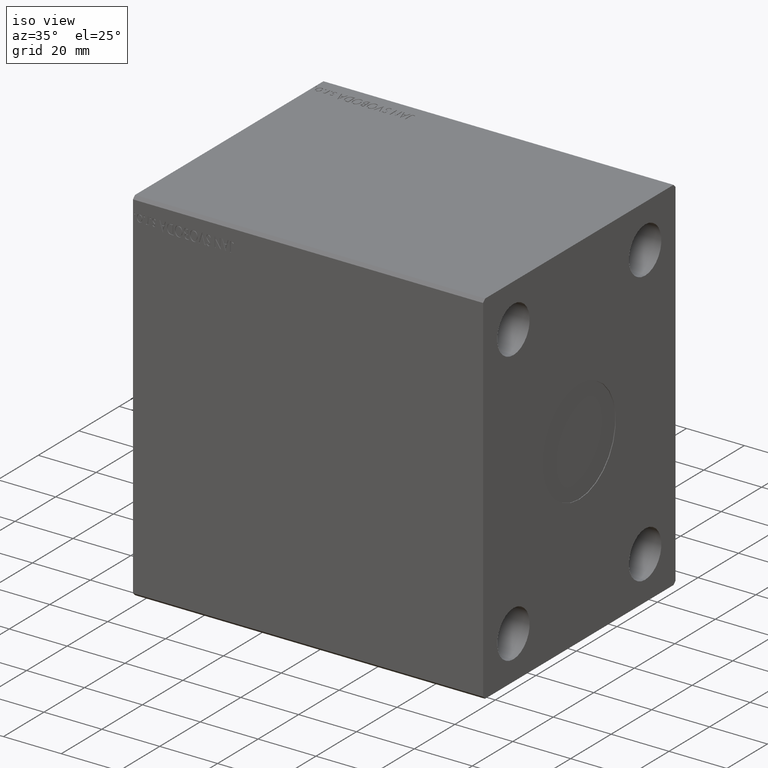
[diagram: clean part render]
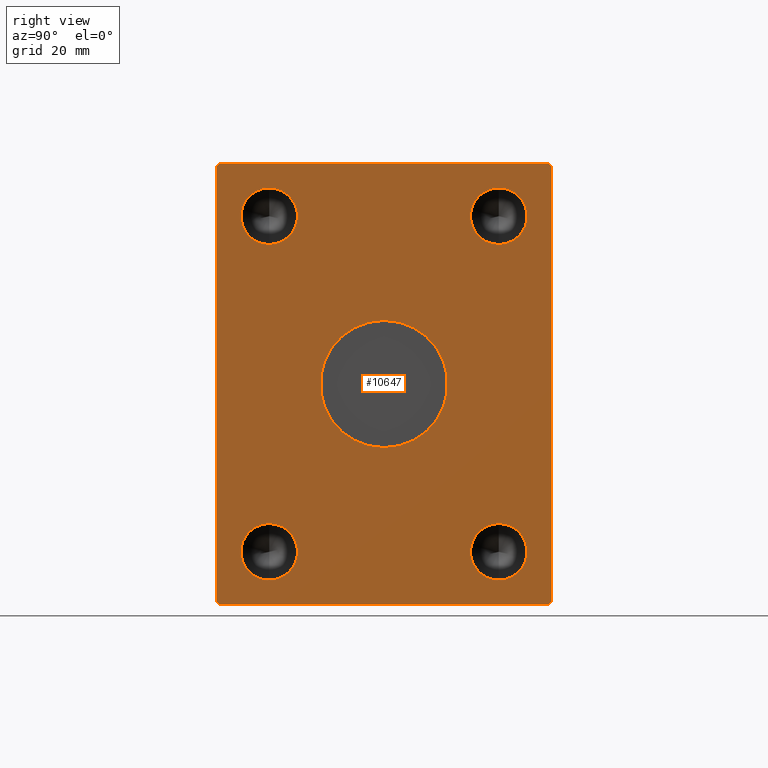
[diagram: tour spotlight — one face highlighted and labeled with its STEP entity id]
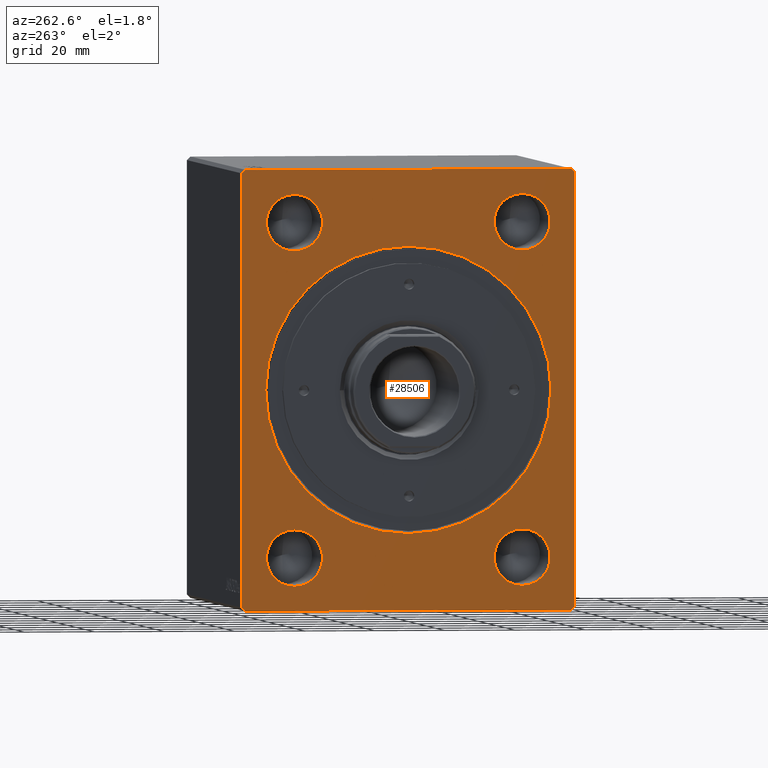
[diagram: tour spotlight — one face highlighted and labeled with its STEP entity id]
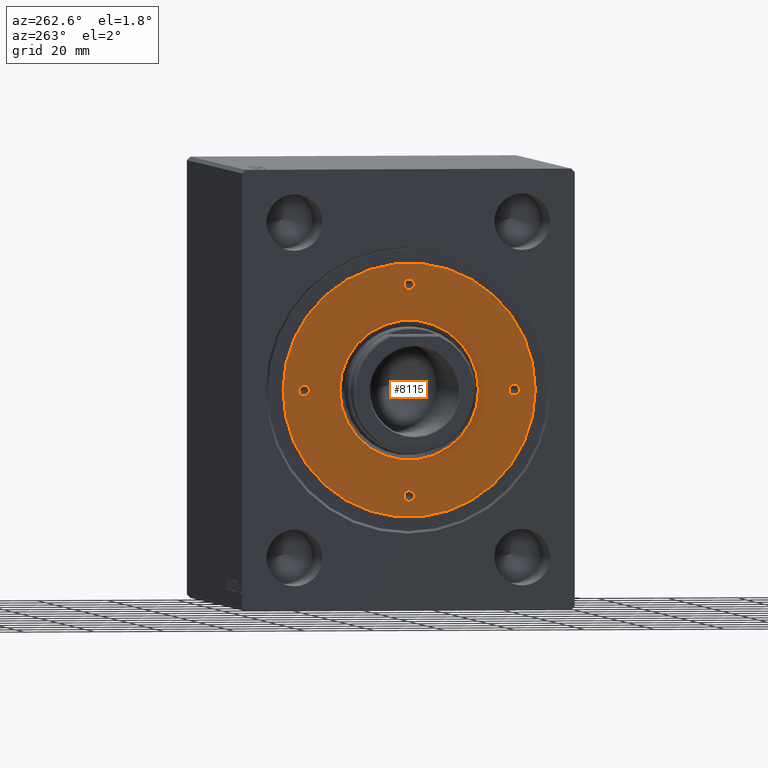
[diagram: tour spotlight — one face highlighted and labeled with its STEP entity id]
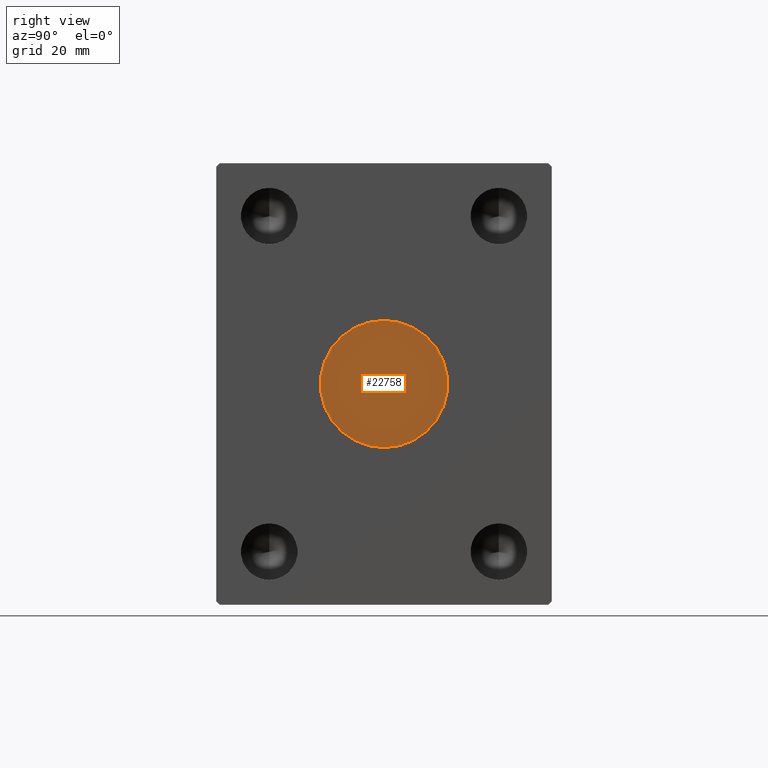
[diagram: tour spotlight — one face highlighted and labeled with its STEP entity id]
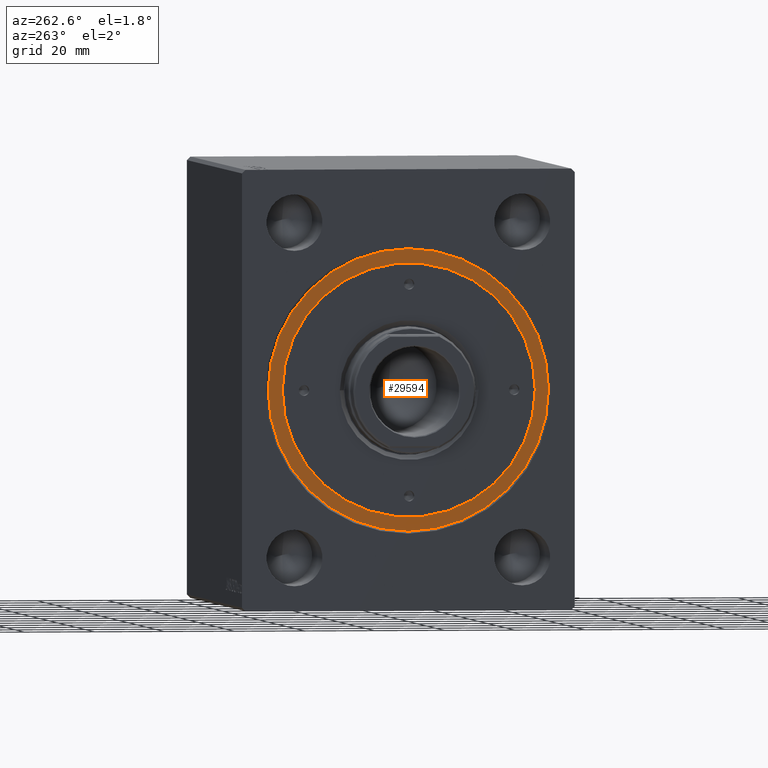
[diagram: tour spotlight — one face highlighted and labeled with its STEP entity id]
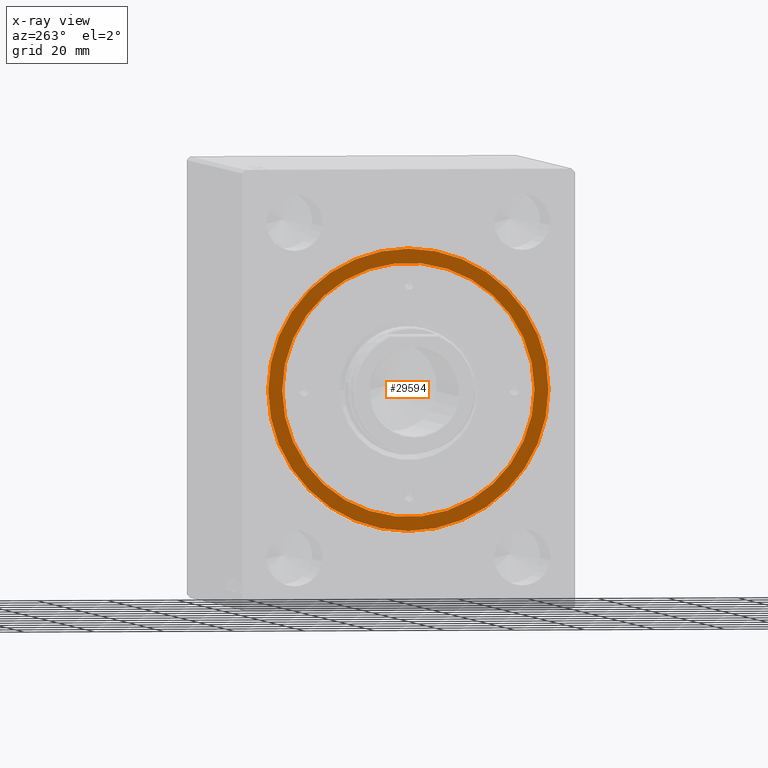
[diagram: x-ray of the same camera — body ghosted, this tour face saturated]
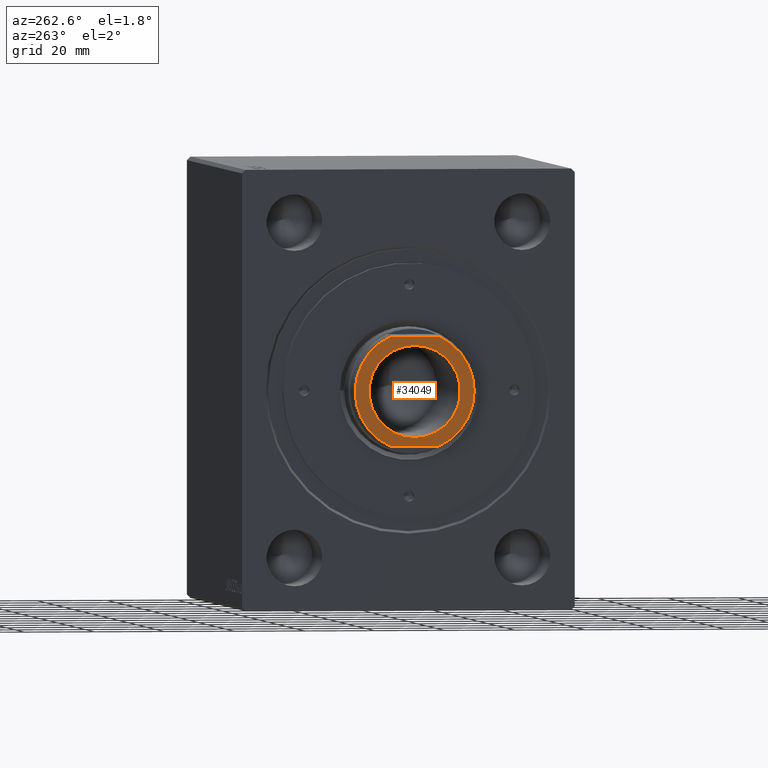
[diagram: tour spotlight — one face highlighted and labeled with its STEP entity id]
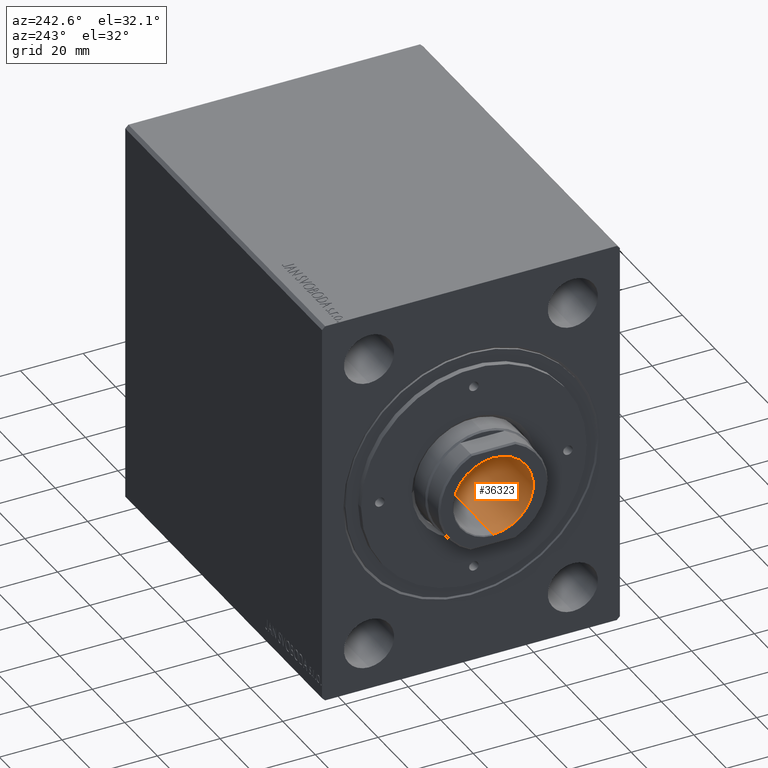
[diagram: tour spotlight — one face highlighted and labeled with its STEP entity id]
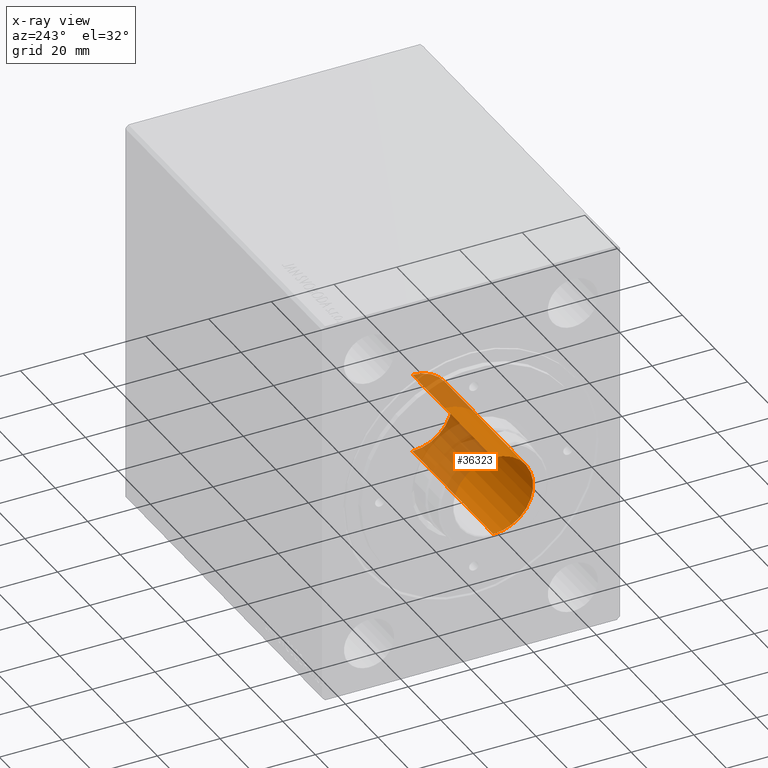
[diagram: x-ray of the same camera — body ghosted, this tour face saturated]
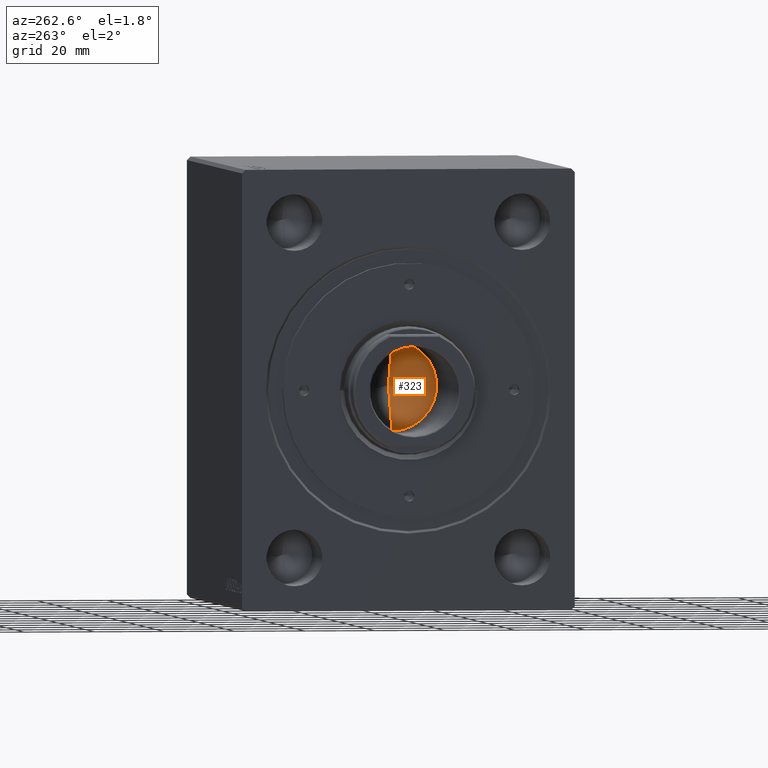
[diagram: tour spotlight — one face highlighted and labeled with its STEP entity id]
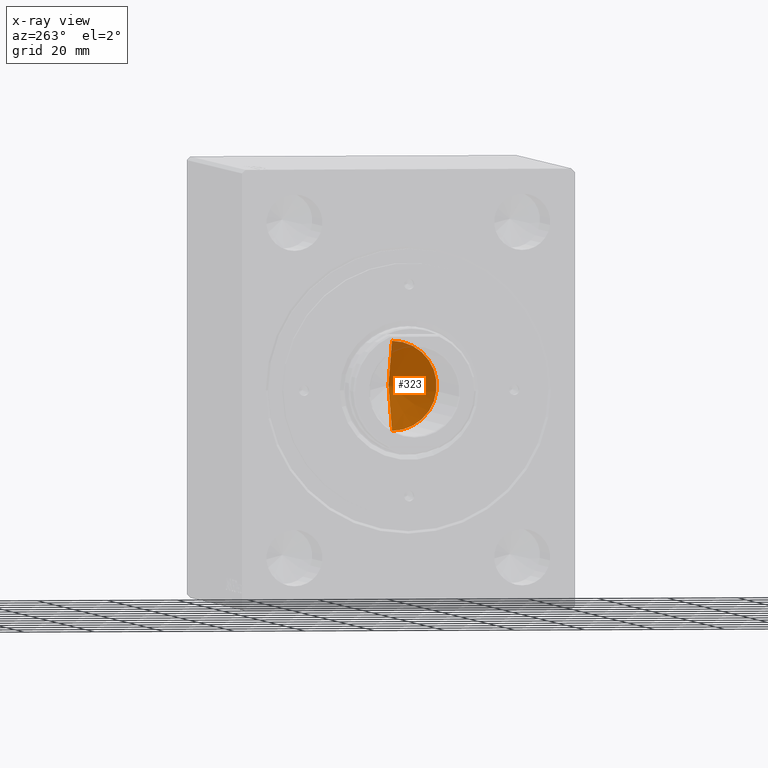
[diagram: x-ray of the same camera — body ghosted, this tour face saturated]
A machine part: a face-by-face anatomy tour. The part has 874 B-rep faces; the first image is the clean iso view, then the 8 largest visible faces are spotlighted one at a time (largest first), each with its STEP entity span.

Face 1 — right view, entity #10647. In plain terms, the highlighted planar face has unit normal (1, 0, 0).
Definition (entity closure, byte-faithful):
#85 = ORIENTED_EDGE ( 'NONE', *, *, #7783, .T. ) ;
#103 = CARTESIAN_POINT ( 'NONE',  ( 121.0000000000000000, 32.50000000000000000, -47.50000000000000000 ) ) ;
#1253 = VECTOR ( 'NONE', #32107, 1000.000000000000114 ) ;
#1358 = AXIS2_PLACEMENT_3D ( 'NONE', #13368, #13148, #30038 ) ;
#1824 = VERTEX_POINT ( 'NONE', #18919 ) ;
#2086 = VERTEX_POINT ( 'NONE', #26448 ) ;
#2590 = ORIENTED_EDGE ( 'NONE', *, *, #6303, .F. ) ;
#2898 = FACE_BOUND ( 'NONE', #4334, .T. ) ;
#2994 = CIRCLE ( 'NONE', #24351, 7.999999999999992895 ) ;
#3080 = EDGE_CURVE ( 'NONE', #11642, #22150, #10416, .T. ) ;
#3993 = AXIS2_PLACEMENT_3D ( 'NONE', #4452, #8668, #28911 ) ;
#4031 = CARTESIAN_POINT ( 'NONE',  ( 121.0000000000000000, -32.50000000000000000, -39.50000000000000711 ) ) ;
#4119 = CIRCLE ( 'NONE', #14786, 7.999999999999992895 ) ;
#4334 = EDGE_LOOP ( 'NONE', ( #2590, #35623 ) ) ;
#4452 = CARTESIAN_POINT ( 'NONE',  ( 121.0000000000000000, 32.50000000000000000, 47.50000000000000000 ) ) ;
#4607 = CARTESIAN_POINT ( 'NONE',  ( 121.0000000000000000, -32.50000000000000000, -47.50000000000000711 ) ) ;
#6303 = EDGE_CURVE ( 'NONE', #1824, #39305, #4119, .T. ) ;
#6553 = EDGE_CURVE ( 'NONE', #28786, #40620, #35445, .T. ) ;
#6595 = DIRECTION ( 'NONE',  ( 0.000000000000000000, 0.000000000000000000, -1.000000000000000000 ) ) ;
#7575 = ORIENTED_EDGE ( 'NONE', *, *, #33011, .T. ) ;
#7783 = EDGE_CURVE ( 'NONE', #32522, #35300, #23610, .T. ) ;
#7921 = CARTESIAN_POINT ( 'NONE',  ( 121.0000000000000000, -32.50000000000000000, 47.50000000000000000 ) ) ;
#8409 = VECTOR ( 'NONE', #37831, 1000.000000000000000 ) ;
#8617 = CARTESIAN_POINT ( 'NONE',  ( 121.0000000000000000, -46.50000000000000000, -62.50000000000001421 ) ) ;
#8668 = DIRECTION ( 'NONE',  ( 1.000000000000000000, -0.000000000000000000, -0.000000000000000000 ) ) ;
#9310 = ORIENTED_EDGE ( 'NONE', *, *, #3080, .F. ) ;
#10035 = ORIENTED_EDGE ( 'NONE', *, *, #15777, .T. ) ;
#10166 = AXIS2_PLACEMENT_3D ( 'NONE', #7921, #32361, #35920 ) ;
#10416 = CIRCLE ( 'NONE', #3993, 7.999999999999992895 ) ;
#10647 = ADVANCED_FACE ( 'NONE', ( #13818, #37376, #30482, #2898, #16502, #20492 ), #43840, .T. ) ;
#11604 = CIRCLE ( 'NONE', #37897, 18.00000000000000000 ) ;
#11642 = VERTEX_POINT ( 'NONE', #34500 ) ;
#11790 = EDGE_LOOP ( 'NONE', ( #20399, #25860 ) ) ;
#11826 = ORIENTED_EDGE ( 'NONE', *, *, #13235, .T. ) ;
#11907 = CARTESIAN_POINT ( 'NONE',  ( 121.0000000000000000, 32.50000000000000000, 47.50000000000000000 ) ) ;
#12215 = VECTOR ( 'NONE', #40042, 1000.000000000000000 ) ;
#12217 = EDGE_CURVE ( 'NONE', #39339, #37107, #34349, .T. ) ;
#12278 = CARTESIAN_POINT ( 'NONE',  ( 121.0000000000000000, 47.50000000000001421, -61.50000000000001421 ) ) ;
#12280 = EDGE_CURVE ( 'NONE', #35861, #24974, #11604, .T. ) ;
#13148 = DIRECTION ( 'NONE',  ( 1.000000000000000000, 0.000000000000000000, 0.000000000000000000 ) ) ;
#13235 = EDGE_CURVE ( 'NONE', #29776, #28786, #18640, .T. ) ;
#13368 = CARTESIAN_POINT ( 'NONE',  ( 121.0000000000000000, 0.000000000000000000, 0.000000000000000000 ) ) ;
#13718 = CARTESIAN_POINT ( 'NONE',  ( 121.0000000000000000, 0.000000000000000000, 0.000000000000000000 ) ) ;
#13818 = FACE_BOUND ( 'NONE', #27114, .T. ) ;
#13941 = DIRECTION ( 'NONE',  ( 1.000000000000000000, 0.000000000000000000, 0.000000000000000000 ) ) ;
#14022 = CARTESIAN_POINT ( 'NONE',  ( 121.0000000000000000, 47.50000000000000000, 61.49999999999998579 ) ) ;
#14041 = ORIENTED_EDGE ( 'NONE', *, *, #32559, .T. ) ;
#14786 = AXIS2_PLACEMENT_3D ( 'NONE', #103, #30349, #37029 ) ;
#15481 = ORIENTED_EDGE ( 'NONE', *, *, #12280, .F. ) ;
#15777 = EDGE_CURVE ( 'NONE', #33238, #29776, #20257, .T. ) ;
#16301 = DIRECTION ( 'NONE',  ( 0.000000000000000000, 0.000000000000000000, -1.000000000000000000 ) ) ;
#16483 = CARTESIAN_POINT ( 'NONE',  ( 121.0000000000000000, 46.50000000000000000, -62.50000000000000000 ) ) ;
#16502 = FACE_BOUND ( 'NONE', #11790, .T. ) ;
#18563 = CARTESIAN_POINT ( 'NONE',  ( 121.0000000000000000, -46.50000000000001421, 62.49999999999997868 ) ) ;
#18640 = LINE ( 'NONE', #25957, #33036 ) ;
#18919 = CARTESIAN_POINT ( 'NONE',  ( 121.0000000000000000, 32.50000000000000000, -55.49999999999999289 ) ) ;
#18975 = CARTESIAN_POINT ( 'NONE',  ( 121.0000000000000000, 32.50000000000000000, -47.50000000000000000 ) ) ;
#19087 = EDGE_CURVE ( 'NONE', #24974, #35861, #43990, .T. ) ;
#19429 = EDGE_CURVE ( 'NONE', #37107, #39339, #34752, .T. ) ;
#20257 = LINE ( 'NONE', #14022, #25677 ) ;
#20399 = ORIENTED_EDGE ( 'NONE', *, *, #34582, .F. ) ;
#20492 = FACE_OUTER_BOUND ( 'NONE', #29551, .T. ) ;
#21127 = CARTESIAN_POINT ( 'NONE',  ( 121.0000000000000000, -47.50000000000001421, 61.49999999999997868 ) ) ;
#21493 = CARTESIAN_POINT ( 'NONE',  ( 121.0000000000000000, -47.49999999999999289, -61.50000000000001421 ) ) ;
#21538 = DIRECTION ( 'NONE',  ( 1.000000000000000000, -0.000000000000000000, -0.000000000000000000 ) ) ;
#22150 = VERTEX_POINT ( 'NONE', #44034 ) ;
#22584 = AXIS2_PLACEMENT_3D ( 'NONE', #43377, #43599, #43819 ) ;
#22861 = CARTESIAN_POINT ( 'NONE',  ( 121.0000000000000000, 46.50000000000000000, -62.50000000000000000 ) ) ;
#23610 = LINE ( 'NONE', #37162, #8409 ) ;
#23636 = CIRCLE ( 'NONE', #35708, 7.999999999999992895 ) ;
#23816 = DIRECTION ( 'NONE',  ( 0.000000000000000000, -0.7071067811865474617, 0.7071067811865474617 ) ) ;
#24221 = DIRECTION ( 'NONE',  ( 0.000000000000000000, 0.000000000000000000, -1.000000000000000000 ) ) ;
#24351 = AXIS2_PLACEMENT_3D ( 'NONE', #18975, #39847, #16301 ) ;
#24407 = CIRCLE ( 'NONE', #10166, 7.999999999999992895 ) ;
#24974 = VERTEX_POINT ( 'NONE', #42087 ) ;
#25478 = DIRECTION ( 'NONE',  ( 0.000000000000000000, 0.000000000000000000, -1.000000000000000000 ) ) ;
#25677 = VECTOR ( 'NONE', #23816, 1000.000000000000114 ) ;
#25741 = EDGE_CURVE ( 'NONE', #31360, #33238, #35627, .T. ) ;
#25860 = ORIENTED_EDGE ( 'NONE', *, *, #41908, .F. ) ;
#25957 = CARTESIAN_POINT ( 'NONE',  ( 121.0000000000000000, 46.50000000000000000, 62.49999999999998579 ) ) ;
#26026 = CARTESIAN_POINT ( 'NONE',  ( 121.0000000000000000, 47.50000000000000000, 61.49999999999998579 ) ) ;
#26448 = CARTESIAN_POINT ( 'NONE',  ( 121.0000000000000000, -32.50000000000000000, 55.49999999999999289 ) ) ;
#27114 = EDGE_LOOP ( 'NONE', ( #15481, #38523 ) ) ;
#28058 = CARTESIAN_POINT ( 'NONE',  ( 121.0000000000000000, 32.50000000000000000, -39.50000000000000711 ) ) ;
#28665 = CARTESIAN_POINT ( 'NONE',  ( 121.0000000000000000, 46.50000000000000000, 62.49999999999998579 ) ) ;
#28786 = VERTEX_POINT ( 'NONE', #28818 ) ;
#28818 = CARTESIAN_POINT ( 'NONE',  ( 121.0000000000000000, -46.50000000000001421, 62.49999999999997868 ) ) ;
#28911 = DIRECTION ( 'NONE',  ( 0.000000000000000000, 0.000000000000000000, -1.000000000000000000 ) ) ;
#28964 = ORIENTED_EDGE ( 'NONE', *, *, #36183, .T. ) ;
#29025 = ORIENTED_EDGE ( 'NONE', *, *, #32664, .F. ) ;
#29551 = EDGE_LOOP ( 'NONE', ( #10035, #11826, #33160, #28964, #7575, #85, #14041, #38971 ) ) ;
#29710 = EDGE_LOOP ( 'NONE', ( #43408, #41239 ) ) ;
#29713 = CARTESIAN_POINT ( 'NONE',  ( 121.0000000000000000, -32.50000000000000000, 39.50000000000000711 ) ) ;
#29776 = VERTEX_POINT ( 'NONE', #28665 ) ;
#30038 = DIRECTION ( 'NONE',  ( 0.000000000000000000, 0.000000000000000000, -1.000000000000000000 ) ) ;
#30349 = DIRECTION ( 'NONE',  ( 1.000000000000000000, -0.000000000000000000, -0.000000000000000000 ) ) ;
#30482 = FACE_BOUND ( 'NONE', #29710, .T. ) ;
#30733 = VECTOR ( 'NONE', #33070, 999.9999999999998863 ) ;
#31360 = VERTEX_POINT ( 'NONE', #36100 ) ;
#31483 = DIRECTION ( 'NONE',  ( 1.000000000000000000, -0.000000000000000000, -0.000000000000000000 ) ) ;
#32107 = DIRECTION ( 'NONE',  ( 0.000000000000000000, -0.7071067811865474617, -0.7071067811865474617 ) ) ;
#32258 = EDGE_CURVE ( 'NONE', #39305, #1824, #2994, .T. ) ;
#32361 = DIRECTION ( 'NONE',  ( 1.000000000000000000, -0.000000000000000000, -0.000000000000000000 ) ) ;
#32522 = VERTEX_POINT ( 'NONE', #8617 ) ;
#32559 = EDGE_CURVE ( 'NONE', #35300, #31360, #43531, .T. ) ;
#32664 = EDGE_CURVE ( 'NONE', #22150, #11642, #23636, .T. ) ;
#32725 = VERTEX_POINT ( 'NONE', #21493 ) ;
#33011 = EDGE_CURVE ( 'NONE', #32725, #32522, #36524, .T. ) ;
#33036 = VECTOR ( 'NONE', #42425, 1000.000000000000000 ) ;
#33070 = DIRECTION ( 'NONE',  ( 0.000000000000000000, 0.7071067811865574537, 0.7071067811865376918 ) ) ;
#33160 = ORIENTED_EDGE ( 'NONE', *, *, #6553, .T. ) ;
#33238 = VERTEX_POINT ( 'NONE', #26026 ) ;
#33308 = CARTESIAN_POINT ( 'NONE',  ( 121.0000000000000000, -32.50000000000000000, -47.50000000000000711 ) ) ;
#33532 = DIRECTION ( 'NONE',  ( 1.000000000000000000, -0.000000000000000000, -0.000000000000000000 ) ) ;
#34349 = CIRCLE ( 'NONE', #43578, 8.000000000000000000 ) ;
#34500 = CARTESIAN_POINT ( 'NONE',  ( 121.0000000000000000, 32.50000000000000000, 39.50000000000000711 ) ) ;
#34582 = EDGE_CURVE ( 'NONE', #43520, #2086, #24407, .T. ) ;
#34643 = CARTESIAN_POINT ( 'NONE',  ( 121.0000000000000000, -32.50000000000000000, 47.50000000000000000 ) ) ;
#34752 = CIRCLE ( 'NONE', #41862, 8.000000000000000000 ) ;
#34806 = VECTOR ( 'NONE', #42534, 1000.000000000000000 ) ;
#34859 = DIRECTION ( 'NONE',  ( 1.000000000000000000, -0.000000000000000000, -0.000000000000000000 ) ) ;
#35091 = DIRECTION ( 'NONE',  ( 0.000000000000000000, 0.000000000000000000, -1.000000000000000000 ) ) ;
#35300 = VERTEX_POINT ( 'NONE', #16483 ) ;
#35445 = LINE ( 'NONE', #18563, #1253 ) ;
#35623 = ORIENTED_EDGE ( 'NONE', *, *, #32258, .F. ) ;
#35627 = LINE ( 'NONE', #12278, #34806 ) ;
#35708 = AXIS2_PLACEMENT_3D ( 'NONE', #11907, #31483, #25478 ) ;
#35861 = VERTEX_POINT ( 'NONE', #43213 ) ;
#35920 = DIRECTION ( 'NONE',  ( 0.000000000000000000, 0.000000000000000000, -1.000000000000000000 ) ) ;
#36075 = CARTESIAN_POINT ( 'NONE',  ( 121.0000000000000000, -47.49999999999999289, -61.50000000000001421 ) ) ;
#36100 = CARTESIAN_POINT ( 'NONE',  ( 121.0000000000000000, 47.50000000000001421, -61.50000000000001421 ) ) ;
#36183 = EDGE_CURVE ( 'NONE', #40620, #32725, #43384, .T. ) ;
#36524 = LINE ( 'NONE', #36075, #41412 ) ;
#37029 = DIRECTION ( 'NONE',  ( 0.000000000000000000, 0.000000000000000000, -1.000000000000000000 ) ) ;
#37107 = VERTEX_POINT ( 'NONE', #42597 ) ;
#37162 = CARTESIAN_POINT ( 'NONE',  ( 121.0000000000000000, -46.50000000000000000, -62.50000000000001421 ) ) ;
#37376 = FACE_BOUND ( 'NONE', #38574, .T. ) ;
#37831 = DIRECTION ( 'NONE',  ( 0.000000000000000000, 1.000000000000000000, 1.492235248152092278E-16 ) ) ;
#37897 = AXIS2_PLACEMENT_3D ( 'NONE', #13718, #13941, #6595 ) ;
#38523 = ORIENTED_EDGE ( 'NONE', *, *, #19087, .F. ) ;
#38574 = EDGE_LOOP ( 'NONE', ( #9310, #29025 ) ) ;
#38971 = ORIENTED_EDGE ( 'NONE', *, *, #25741, .T. ) ;
#39305 = VERTEX_POINT ( 'NONE', #28058 ) ;
#39339 = VERTEX_POINT ( 'NONE', #4031 ) ;
#39817 = CARTESIAN_POINT ( 'NONE',  ( 121.0000000000000000, -47.50000000000001421, 61.49999999999997868 ) ) ;
#39847 = DIRECTION ( 'NONE',  ( 1.000000000000000000, -0.000000000000000000, -0.000000000000000000 ) ) ;
#40042 = DIRECTION ( 'NONE',  ( 0.000000000000000000, 1.692413147294445970E-16, -1.000000000000000000 ) ) ;
#40077 = DIRECTION ( 'NONE',  ( 0.000000000000000000, 0.7071067811865451302, -0.7071067811865500152 ) ) ;
#40421 = DIRECTION ( 'NONE',  ( 0.000000000000000000, 0.000000000000000000, -1.000000000000000000 ) ) ;
#40620 = VERTEX_POINT ( 'NONE', #21127 ) ;
#41239 = ORIENTED_EDGE ( 'NONE', *, *, #12217, .F. ) ;
#41412 = VECTOR ( 'NONE', #40077, 1000.000000000000114 ) ;
#41494 = CIRCLE ( 'NONE', #43655, 7.999999999999992895 ) ;
#41862 = AXIS2_PLACEMENT_3D ( 'NONE', #33308, #33532, #40421 ) ;
#41908 = EDGE_CURVE ( 'NONE', #2086, #43520, #41494, .T. ) ;
#42087 = CARTESIAN_POINT ( 'NONE',  ( 121.0000000000000000, 2.204364238465235428E-15, 18.00000000000000000 ) ) ;
#42425 = DIRECTION ( 'NONE',  ( 0.000000000000000000, -1.000000000000000000, -7.461176240760460157E-17 ) ) ;
#42534 = DIRECTION ( 'NONE',  ( 0.000000000000000000, -1.128275431529630729E-16, 1.000000000000000000 ) ) ;
#42597 = CARTESIAN_POINT ( 'NONE',  ( 121.0000000000000000, -32.50000000000000000, -55.50000000000000711 ) ) ;
#43213 = CARTESIAN_POINT ( 'NONE',  ( 121.0000000000000000, 0.000000000000000000, -18.00000000000000000 ) ) ;
#43377 = CARTESIAN_POINT ( 'NONE',  ( 121.0000000000000000, 0.000000000000000000, 0.000000000000000000 ) ) ;
#43384 = LINE ( 'NONE', #39817, #12215 ) ;
#43408 = ORIENTED_EDGE ( 'NONE', *, *, #19429, .F. ) ;
#43520 = VERTEX_POINT ( 'NONE', #29713 ) ;
#43531 = LINE ( 'NONE', #22861, #30733 ) ;
#43578 = AXIS2_PLACEMENT_3D ( 'NONE', #4607, #21538, #35091 ) ;
#43599 = DIRECTION ( 'NONE',  ( 1.000000000000000000, 0.000000000000000000, 0.000000000000000000 ) ) ;
#43655 = AXIS2_PLACEMENT_3D ( 'NONE', #34643, #34859, #24221 ) ;
#43819 = DIRECTION ( 'NONE',  ( 0.000000000000000000, 0.000000000000000000, -1.000000000000000000 ) ) ;
#43840 = PLANE ( 'NONE',  #1358 ) ;
#43990 = CIRCLE ( 'NONE', #22584, 18.00000000000000000 ) ;
#44034 = CARTESIAN_POINT ( 'NONE',  ( 121.0000000000000000, 32.50000000000000000, 55.49999999999999289 ) ) ;

Face 2 — auxiliary view, entity #28506. In plain terms, the highlighted planar face has unit normal (1, 0, 0).
Definition (entity closure, byte-faithful):
#219 = CARTESIAN_POINT ( 'NONE',  ( 4.898587196589409870E-16, -32.50000000000000000, -39.50000000000000711 ) ) ;
#305 = EDGE_CURVE ( 'NONE', #30146, #35410, #2805, .T. ) ;
#339 = CARTESIAN_POINT ( 'NONE',  ( 4.898587196589409870E-16, 32.50000000000000000, -47.50000000000000000 ) ) ;
#805 = CARTESIAN_POINT ( 'NONE',  ( 4.898587196589409870E-16, 32.50000000000000000, 55.49999999999999289 ) ) ;
#1261 = ORIENTED_EDGE ( 'NONE', *, *, #36348, .T. ) ;
#1826 = CARTESIAN_POINT ( 'NONE',  ( 0.000000000000000000, 46.50000000000000000, -62.50000000000000000 ) ) ;
#1866 = VERTEX_POINT ( 'NONE', #29781 ) ;
#2303 = CIRCLE ( 'NONE', #42105, 7.999999999999992895 ) ;
#2805 = CIRCLE ( 'NONE', #43305, 7.999999999999992895 ) ;
#3388 = AXIS2_PLACEMENT_3D ( 'NONE', #9520, #6183, #13088 ) ;
#3760 = VERTEX_POINT ( 'NONE', #1826 ) ;
#3957 = EDGE_LOOP ( 'NONE', ( #36509, #25584 ) ) ;
#4289 = ORIENTED_EDGE ( 'NONE', *, *, #9726, .F. ) ;
#4338 = VERTEX_POINT ( 'NONE', #18441 ) ;
#4495 = CIRCLE ( 'NONE', #29256, 40.70000000000003837 ) ;
#4690 = CARTESIAN_POINT ( 'NONE',  ( 0.000000000000000000, -47.49999999999999289, -61.50000000000001421 ) ) ;
#5609 = ORIENTED_EDGE ( 'NONE', *, *, #32809, .F. ) ;
#5639 = LINE ( 'NONE', #42572, #36991 ) ;
#6135 = CARTESIAN_POINT ( 'NONE',  ( 4.898587196589409870E-16, -32.50000000000000000, 55.49999999999999289 ) ) ;
#6183 = DIRECTION ( 'NONE',  ( -1.000000000000000000, -0.000000000000000000, -0.000000000000000000 ) ) ;
#6868 = VERTEX_POINT ( 'NONE', #219 ) ;
#7132 = EDGE_CURVE ( 'NONE', #6868, #9967, #31108, .T. ) ;
#7346 = EDGE_CURVE ( 'NONE', #15637, #17865, #16918, .T. ) ;
#7898 = CARTESIAN_POINT ( 'NONE',  ( 0.000000000000000000, 47.50000000000001421, -61.50000000000001421 ) ) ;
#8537 = FACE_BOUND ( 'NONE', #3957, .T. ) ;
#8966 = DIRECTION ( 'NONE',  ( 0.000000000000000000, 0.000000000000000000, -1.000000000000000000 ) ) ;
#9520 = CARTESIAN_POINT ( 'NONE',  ( 4.898587196589409870E-16, -32.50000000000000000, -47.50000000000000711 ) ) ;
#9577 = CARTESIAN_POINT ( 'NONE',  ( 4.898587196589409870E-16, -32.50000000000000000, -47.50000000000000711 ) ) ;
#9726 = EDGE_CURVE ( 'NONE', #18960, #38416, #30506, .T. ) ;
#9743 = EDGE_CURVE ( 'NONE', #17865, #15637, #13406, .T. ) ;
#9815 = ORIENTED_EDGE ( 'NONE', *, *, #7346, .F. ) ;
#9967 = VERTEX_POINT ( 'NONE', #17082 ) ;
#10418 = ORIENTED_EDGE ( 'NONE', *, *, #7132, .F. ) ;
#10595 = ORIENTED_EDGE ( 'NONE', *, *, #305, .F. ) ;
#10994 = DIRECTION ( 'NONE',  ( 0.000000000000000000, 1.692413147294445970E-16, -1.000000000000000000 ) ) ;
#11259 = LINE ( 'NONE', #27946, #40422 ) ;
#11266 = AXIS2_PLACEMENT_3D ( 'NONE', #24516, #17409, #24940 ) ;
#11663 = FACE_OUTER_BOUND ( 'NONE', #17601, .T. ) ;
#12098 = DIRECTION ( 'NONE',  ( 0.000000000000000000, -1.128275431529630729E-16, 1.000000000000000000 ) ) ;
#12233 = EDGE_LOOP ( 'NONE', ( #16905, #1261 ) ) ;
#12252 = CIRCLE ( 'NONE', #40669, 40.70000000000003837 ) ;
#12567 = DIRECTION ( 'NONE',  ( 0.000000000000000000, 0.7071067811865451302, -0.7071067811865500152 ) ) ;
#13088 = DIRECTION ( 'NONE',  ( 0.000000000000000000, 0.000000000000000000, 1.000000000000000000 ) ) ;
#13200 = ORIENTED_EDGE ( 'NONE', *, *, #18732, .F. ) ;
#13406 = CIRCLE ( 'NONE', #11266, 7.999999999999992895 ) ;
#13872 = LINE ( 'NONE', #30092, #36189 ) ;
#13926 = DIRECTION ( 'NONE',  ( -1.000000000000000000, -0.000000000000000000, -0.000000000000000000 ) ) ;
#14083 = CARTESIAN_POINT ( 'NONE',  ( 4.898587196589409870E-16, 32.50000000000000000, -39.50000000000000711 ) ) ;
#14285 = DIRECTION ( 'NONE',  ( 0.000000000000000000, 0.000000000000000000, 1.000000000000000000 ) ) ;
#14898 = CARTESIAN_POINT ( 'NONE',  ( 4.898587196589409870E-16, 32.50000000000000000, -55.49999999999999289 ) ) ;
#14928 = VERTEX_POINT ( 'NONE', #805 ) ;
#15020 = FACE_BOUND ( 'NONE', #41615, .T. ) ;
#15163 = DIRECTION ( 'NONE',  ( -1.000000000000000000, -0.000000000000000000, -0.000000000000000000 ) ) ;
#15225 = EDGE_CURVE ( 'NONE', #38416, #35238, #34575, .T. ) ;
#15497 = DIRECTION ( 'NONE',  ( -1.000000000000000000, -0.000000000000000000, -0.000000000000000000 ) ) ;
#15637 = VERTEX_POINT ( 'NONE', #18508 ) ;
#16209 = AXIS2_PLACEMENT_3D ( 'NONE', #35283, #28397, #42402 ) ;
#16278 = VECTOR ( 'NONE', #43769, 1000.000000000000114 ) ;
#16593 = EDGE_CURVE ( 'NONE', #9967, #6868, #24751, .T. ) ;
#16845 = CARTESIAN_POINT ( 'NONE',  ( 0.000000000000000000, 0.000000000000000000, 0.000000000000000000 ) ) ;
#16875 = LINE ( 'NONE', #26866, #16278 ) ;
#16905 = ORIENTED_EDGE ( 'NONE', *, *, #36978, .T. ) ;
#16918 = CIRCLE ( 'NONE', #16209, 7.999999999999992895 ) ;
#17082 = CARTESIAN_POINT ( 'NONE',  ( 4.898587196589409870E-16, -32.50000000000000000, -55.50000000000000711 ) ) ;
#17409 = DIRECTION ( 'NONE',  ( -1.000000000000000000, -0.000000000000000000, -0.000000000000000000 ) ) ;
#17601 = EDGE_LOOP ( 'NONE', ( #21051, #35851, #37488, #29874, #5609, #37567, #4289, #13200 ) ) ;
#17865 = VERTEX_POINT ( 'NONE', #6135 ) ;
#17988 = EDGE_LOOP ( 'NONE', ( #10418, #28261 ) ) ;
#18053 = VERTEX_POINT ( 'NONE', #7898 ) ;
#18343 = AXIS2_PLACEMENT_3D ( 'NONE', #32374, #15497, #35063 ) ;
#18441 = CARTESIAN_POINT ( 'NONE',  ( 0.000000000000000000, 0.000000000000000000, 40.70000000000003837 ) ) ;
#18508 = CARTESIAN_POINT ( 'NONE',  ( 4.898587196589409870E-16, -32.50000000000000000, 39.50000000000000711 ) ) ;
#18732 = EDGE_CURVE ( 'NONE', #32032, #18960, #11259, .T. ) ;
#18960 = VERTEX_POINT ( 'NONE', #34309 ) ;
#20586 = EDGE_CURVE ( 'NONE', #35410, #30146, #31113, .T. ) ;
#20601 = EDGE_CURVE ( 'NONE', #41922, #14928, #37500, .T. ) ;
#20871 = DIRECTION ( 'NONE',  ( -1.000000000000000000, -0.000000000000000000, -0.000000000000000000 ) ) ;
#21051 = ORIENTED_EDGE ( 'NONE', *, *, #23601, .F. ) ;
#21606 = DIRECTION ( 'NONE',  ( 0.000000000000000000, -0.7071067811865474617, -0.7071067811865474617 ) ) ;
#21687 = EDGE_CURVE ( 'NONE', #3760, #18053, #39742, .T. ) ;
#22122 = FACE_BOUND ( 'NONE', #12233, .T. ) ;
#22159 = DIRECTION ( 'NONE',  ( 0.000000000000000000, -1.000000000000000000, -7.461176240760460157E-17 ) ) ;
#23024 = CARTESIAN_POINT ( 'NONE',  ( 0.000000000000000000, -47.49999999999999289, -61.50000000000001421 ) ) ;
#23459 = CARTESIAN_POINT ( 'NONE',  ( 0.000000000000000000, 46.50000000000000000, 62.49999999999998579 ) ) ;
#23601 = EDGE_CURVE ( 'NONE', #35588, #32032, #16875, .T. ) ;
#23962 = DIRECTION ( 'NONE',  ( 1.000000000000000000, 0.000000000000000000, 0.000000000000000000 ) ) ;
#24516 = CARTESIAN_POINT ( 'NONE',  ( 4.898587196589409870E-16, -32.50000000000000000, 47.50000000000000000 ) ) ;
#24751 = CIRCLE ( 'NONE', #38228, 8.000000000000000000 ) ;
#24895 = EDGE_CURVE ( 'NONE', #1866, #3760, #13872, .T. ) ;
#24940 = DIRECTION ( 'NONE',  ( 0.000000000000000000, 0.000000000000000000, 1.000000000000000000 ) ) ;
#25124 = DIRECTION ( 'NONE',  ( 1.000000000000000000, 0.000000000000000000, 0.000000000000000000 ) ) ;
#25158 = CARTESIAN_POINT ( 'NONE',  ( 0.000000000000000000, -46.50000000000001421, 62.49999999999997868 ) ) ;
#25584 = ORIENTED_EDGE ( 'NONE', *, *, #20601, .F. ) ;
#25669 = PLANE ( 'NONE',  #27760 ) ;
#26837 = DIRECTION ( 'NONE',  ( 0.000000000000000000, 0.7071067811865574537, 0.7071067811865376918 ) ) ;
#26866 = CARTESIAN_POINT ( 'NONE',  ( 0.000000000000000000, 47.50000000000000000, 61.49999999999998579 ) ) ;
#26995 = DIRECTION ( 'NONE',  ( 0.000000000000000000, 1.000000000000000000, 1.492235248152092278E-16 ) ) ;
#27289 = CARTESIAN_POINT ( 'NONE',  ( 0.000000000000000000, 46.50000000000000000, -62.50000000000000000 ) ) ;
#27704 = DIRECTION ( 'NONE',  ( 0.000000000000000000, 0.000000000000000000, 1.000000000000000000 ) ) ;
#27760 = AXIS2_PLACEMENT_3D ( 'NONE', #39444, #35666, #8966 ) ;
#27824 = ORIENTED_EDGE ( 'NONE', *, *, #9743, .F. ) ;
#27946 = CARTESIAN_POINT ( 'NONE',  ( 0.000000000000000000, 46.50000000000000000, 62.49999999999998579 ) ) ;
#28261 = ORIENTED_EDGE ( 'NONE', *, *, #16593, .F. ) ;
#28397 = DIRECTION ( 'NONE',  ( -1.000000000000000000, -0.000000000000000000, -0.000000000000000000 ) ) ;
#28506 = ADVANCED_FACE ( 'NONE', ( #8537, #36098, #15020, #38572, #22122, #11663 ), #25669, .F. ) ;
#28519 = EDGE_CURVE ( 'NONE', #18053, #35588, #5639, .T. ) ;
#29256 = AXIS2_PLACEMENT_3D ( 'NONE', #34906, #25124, #38455 ) ;
#29744 = CARTESIAN_POINT ( 'NONE',  ( 0.000000000000000000, 47.50000000000000000, 61.49999999999998579 ) ) ;
#29781 = CARTESIAN_POINT ( 'NONE',  ( 0.000000000000000000, -46.50000000000000000, -62.50000000000001421 ) ) ;
#29874 = ORIENTED_EDGE ( 'NONE', *, *, #24895, .F. ) ;
#29946 = DIRECTION ( 'NONE',  ( 0.000000000000000000, 0.000000000000000000, -1.000000000000000000 ) ) ;
#30092 = CARTESIAN_POINT ( 'NONE',  ( 0.000000000000000000, -46.50000000000000000, -62.50000000000001421 ) ) ;
#30146 = VERTEX_POINT ( 'NONE', #14083 ) ;
#30506 = LINE ( 'NONE', #25158, #37563 ) ;
#30799 = VECTOR ( 'NONE', #10994, 1000.000000000000000 ) ;
#31045 = VERTEX_POINT ( 'NONE', #36376 ) ;
#31067 = CARTESIAN_POINT ( 'NONE',  ( 4.898587196589409870E-16, 32.50000000000000000, -47.50000000000000000 ) ) ;
#31108 = CIRCLE ( 'NONE', #3388, 8.000000000000000000 ) ;
#31113 = CIRCLE ( 'NONE', #42495, 7.999999999999992895 ) ;
#31140 = VECTOR ( 'NONE', #26837, 999.9999999999998863 ) ;
#31597 = CARTESIAN_POINT ( 'NONE',  ( 4.898587196589409870E-16, 32.50000000000000000, 47.50000000000000000 ) ) ;
#31653 = CARTESIAN_POINT ( 'NONE',  ( 0.000000000000000000, -47.50000000000001421, 61.49999999999997868 ) ) ;
#32032 = VERTEX_POINT ( 'NONE', #23459 ) ;
#32374 = CARTESIAN_POINT ( 'NONE',  ( 4.898587196589409870E-16, 32.50000000000000000, 47.50000000000000000 ) ) ;
#32809 = EDGE_CURVE ( 'NONE', #35238, #1866, #36796, .T. ) ;
#33153 = EDGE_CURVE ( 'NONE', #14928, #41922, #2303, .T. ) ;
#34309 = CARTESIAN_POINT ( 'NONE',  ( 0.000000000000000000, -46.50000000000001421, 62.49999999999997868 ) ) ;
#34424 = DIRECTION ( 'NONE',  ( 0.000000000000000000, 0.000000000000000000, 1.000000000000000000 ) ) ;
#34429 = CARTESIAN_POINT ( 'NONE',  ( 4.898587196589409870E-16, 32.50000000000000000, 39.50000000000000711 ) ) ;
#34575 = LINE ( 'NONE', #31653, #30799 ) ;
#34906 = CARTESIAN_POINT ( 'NONE',  ( 0.000000000000000000, 0.000000000000000000, 0.000000000000000000 ) ) ;
#35063 = DIRECTION ( 'NONE',  ( 0.000000000000000000, 0.000000000000000000, 1.000000000000000000 ) ) ;
#35238 = VERTEX_POINT ( 'NONE', #4690 ) ;
#35283 = CARTESIAN_POINT ( 'NONE',  ( 4.898587196589409870E-16, -32.50000000000000000, 47.50000000000000000 ) ) ;
#35410 = VERTEX_POINT ( 'NONE', #14898 ) ;
#35588 = VERTEX_POINT ( 'NONE', #29744 ) ;
#35666 = DIRECTION ( 'NONE',  ( 1.000000000000000000, 0.000000000000000000, 0.000000000000000000 ) ) ;
#35851 = ORIENTED_EDGE ( 'NONE', *, *, #28519, .F. ) ;
#36098 = FACE_BOUND ( 'NONE', #17988, .T. ) ;
#36189 = VECTOR ( 'NONE', #26995, 1000.000000000000000 ) ;
#36348 = EDGE_CURVE ( 'NONE', #31045, #4338, #4495, .T. ) ;
#36376 = CARTESIAN_POINT ( 'NONE',  ( 0.000000000000000000, 4.984312472529732047E-15, -40.70000000000003837 ) ) ;
#36509 = ORIENTED_EDGE ( 'NONE', *, *, #33153, .F. ) ;
#36796 = LINE ( 'NONE', #23024, #40675 ) ;
#36978 = EDGE_CURVE ( 'NONE', #4338, #31045, #12252, .T. ) ;
#36991 = VECTOR ( 'NONE', #12098, 1000.000000000000000 ) ;
#37488 = ORIENTED_EDGE ( 'NONE', *, *, #21687, .F. ) ;
#37500 = CIRCLE ( 'NONE', #18343, 7.999999999999992895 ) ;
#37563 = VECTOR ( 'NONE', #21606, 1000.000000000000114 ) ;
#37567 = ORIENTED_EDGE ( 'NONE', *, *, #15225, .F. ) ;
#38228 = AXIS2_PLACEMENT_3D ( 'NONE', #9577, #42737, #39600 ) ;
#38416 = VERTEX_POINT ( 'NONE', #41845 ) ;
#38455 = DIRECTION ( 'NONE',  ( 0.000000000000000000, 0.000000000000000000, -1.000000000000000000 ) ) ;
#38572 = FACE_BOUND ( 'NONE', #43794, .T. ) ;
#39444 = CARTESIAN_POINT ( 'NONE',  ( 0.000000000000000000, 0.000000000000000000, 0.000000000000000000 ) ) ;
#39600 = DIRECTION ( 'NONE',  ( 0.000000000000000000, 0.000000000000000000, 1.000000000000000000 ) ) ;
#39742 = LINE ( 'NONE', #27289, #31140 ) ;
#40422 = VECTOR ( 'NONE', #22159, 1000.000000000000000 ) ;
#40669 = AXIS2_PLACEMENT_3D ( 'NONE', #16845, #23962, #29946 ) ;
#40675 = VECTOR ( 'NONE', #12567, 1000.000000000000114 ) ;
#41615 = EDGE_LOOP ( 'NONE', ( #10595, #43392 ) ) ;
#41845 = CARTESIAN_POINT ( 'NONE',  ( 0.000000000000000000, -47.50000000000001421, 61.49999999999997868 ) ) ;
#41922 = VERTEX_POINT ( 'NONE', #34429 ) ;
#42105 = AXIS2_PLACEMENT_3D ( 'NONE', #31597, #15163, #14285 ) ;
#42402 = DIRECTION ( 'NONE',  ( 0.000000000000000000, 0.000000000000000000, 1.000000000000000000 ) ) ;
#42495 = AXIS2_PLACEMENT_3D ( 'NONE', #31067, #20871, #34424 ) ;
#42572 = CARTESIAN_POINT ( 'NONE',  ( 0.000000000000000000, 47.50000000000001421, -61.50000000000001421 ) ) ;
#42737 = DIRECTION ( 'NONE',  ( -1.000000000000000000, -0.000000000000000000, -0.000000000000000000 ) ) ;
#43305 = AXIS2_PLACEMENT_3D ( 'NONE', #339, #13926, #27704 ) ;
#43392 = ORIENTED_EDGE ( 'NONE', *, *, #20586, .F. ) ;
#43769 = DIRECTION ( 'NONE',  ( 0.000000000000000000, -0.7071067811865474617, 0.7071067811865474617 ) ) ;
#43794 = EDGE_LOOP ( 'NONE', ( #27824, #9815 ) ) ;

Face 3 — auxiliary view, entity #8115. In plain terms, the highlighted planar face has unit normal (-1, 0, 0).
Definition (entity closure, byte-faithful):
#552 = VERTEX_POINT ( 'NONE', #39666 ) ;
#839 = FACE_BOUND ( 'NONE', #43687, .T. ) ;
#1264 = FACE_BOUND ( 'NONE', #31872, .T. ) ;
#1653 = AXIS2_PLACEMENT_3D ( 'NONE', #36241, #12454, #33124 ) ;
#2187 = DIRECTION ( 'NONE',  ( -0.000000000000000000, -0.000000000000000000, 1.000000000000000000 ) ) ;
#3100 = CARTESIAN_POINT ( 'NONE',  ( -1.499999999999996891, -30.00000000000000000, 92.79999999999999716 ) ) ;
#3913 = ORIENTED_EDGE ( 'NONE', *, *, #16822, .F. ) ;
#4092 = AXIS2_PLACEMENT_3D ( 'NONE', #10172, #16861, #16643 ) ;
#4689 = EDGE_CURVE ( 'NONE', #39288, #26244, #17586, .T. ) ;
#5029 = CARTESIAN_POINT ( 'NONE',  ( 0.000000000000000000, 0.000000000000000000, 92.79999999999999716 ) ) ;
#5051 = DIRECTION ( 'NONE',  ( 0.000000000000000000, 0.000000000000000000, 1.000000000000000000 ) ) ;
#5193 = EDGE_CURVE ( 'NONE', #37230, #15533, #27537, .T. ) ;
#6205 = EDGE_CURVE ( 'NONE', #552, #39613, #6921, .T. ) ;
#6921 = CIRCLE ( 'NONE', #39579, 36.00000000000000000 ) ;
#7134 = CARTESIAN_POINT ( 'NONE',  ( 0.000000000000000000, -30.00000000000000000, 92.79999999999999716 ) ) ;
#7737 = PLANE ( 'NONE',  #13369 ) ;
#7848 = DIRECTION ( 'NONE',  ( -0.000000000000000000, -0.000000000000000000, 1.000000000000000000 ) ) ;
#8115 = ADVANCED_FACE ( 'NONE', ( #35517, #38419, #839, #1264, #11068, #14432 ), #7737, .T. ) ;
#8235 = EDGE_LOOP ( 'NONE', ( #12276, #34652 ) ) ;
#8894 = CARTESIAN_POINT ( 'NONE',  ( 0.000000000000000000, 0.000000000000000000, 92.79999999999999716 ) ) ;
#9156 = DIRECTION ( 'NONE',  ( -0.000000000000000000, -0.000000000000000000, 1.000000000000000000 ) ) ;
#10172 = CARTESIAN_POINT ( 'NONE',  ( 30.00000000000000000, 0.000000000000000000, 92.79999999999999716 ) ) ;
#10219 = VERTEX_POINT ( 'NONE', #25234 ) ;
#10887 = DIRECTION ( 'NONE',  ( 1.000000000000000000, 0.000000000000000000, 0.000000000000000000 ) ) ;
#11068 = FACE_BOUND ( 'NONE', #18914, .T. ) ;
#11390 = EDGE_CURVE ( 'NONE', #25580, #40668, #21161, .T. ) ;
#12207 = CARTESIAN_POINT ( 'NONE',  ( 0.000000000000000000, -30.00000000000000000, 92.79999999999999716 ) ) ;
#12276 = ORIENTED_EDGE ( 'NONE', *, *, #11390, .F. ) ;
#12454 = DIRECTION ( 'NONE',  ( 0.000000000000000000, 0.000000000000000000, 1.000000000000000000 ) ) ;
#12736 = EDGE_CURVE ( 'NONE', #39613, #552, #16599, .T. ) ;
#12842 = ORIENTED_EDGE ( 'NONE', *, *, #33466, .F. ) ;
#13369 = AXIS2_PLACEMENT_3D ( 'NONE', #42420, #5051, #18634 ) ;
#13519 = EDGE_CURVE ( 'NONE', #33225, #10219, #35181, .T. ) ;
#13709 = EDGE_LOOP ( 'NONE', ( #22404, #33660 ) ) ;
#14096 = ORIENTED_EDGE ( 'NONE', *, *, #12736, .T. ) ;
#14154 = CARTESIAN_POINT ( 'NONE',  ( -28.50000000000000000, 0.000000000000000000, 92.79999999999999716 ) ) ;
#14432 = FACE_OUTER_BOUND ( 'NONE', #24343, .T. ) ;
#14535 = ORIENTED_EDGE ( 'NONE', *, *, #31705, .T. ) ;
#14990 = CARTESIAN_POINT ( 'NONE',  ( 0.000000000000000000, 30.00000000000000000, 92.79999999999999716 ) ) ;
#15495 = DIRECTION ( 'NONE',  ( 0.000000000000000000, 0.000000000000000000, 1.000000000000000000 ) ) ;
#15533 = VERTEX_POINT ( 'NONE', #29343 ) ;
#16299 = DIRECTION ( 'NONE',  ( 1.000000000000000000, 0.000000000000000000, 0.000000000000000000 ) ) ;
#16599 = CIRCLE ( 'NONE', #1653, 36.00000000000000000 ) ;
#16643 = DIRECTION ( 'NONE',  ( 1.000000000000000000, 0.000000000000000000, 0.000000000000000000 ) ) ;
#16822 = EDGE_CURVE ( 'NONE', #30225, #19134, #41110, .T. ) ;
#16861 = DIRECTION ( 'NONE',  ( -0.000000000000000000, -0.000000000000000000, 1.000000000000000000 ) ) ;
#16906 = CARTESIAN_POINT ( 'NONE',  ( 19.79999999999997229, 0.000000000000000000, 92.79999999999999716 ) ) ;
#17266 = CIRCLE ( 'NONE', #27187, 1.499999999999994449 ) ;
#17586 = CIRCLE ( 'NONE', #26063, 19.79999999999996874 ) ;
#17873 = DIRECTION ( 'NONE',  ( 1.000000000000000000, 0.000000000000000000, 0.000000000000000000 ) ) ;
#17902 = CARTESIAN_POINT ( 'NONE',  ( -19.79999999999997229, 2.424800662311755855E-15, 92.79999999999999716 ) ) ;
#17920 = AXIS2_PLACEMENT_3D ( 'NONE', #8894, #36028, #26641 ) ;
#18500 = DIRECTION ( 'NONE',  ( 1.000000000000000000, 0.000000000000000000, 0.000000000000000000 ) ) ;
#18634 = DIRECTION ( 'NONE',  ( 1.000000000000000000, 0.000000000000000000, -0.000000000000000000 ) ) ;
#18914 = EDGE_LOOP ( 'NONE', ( #29888, #14535 ) ) ;
#19068 = EDGE_CURVE ( 'NONE', #10219, #33225, #20567, .T. ) ;
#19120 = DIRECTION ( 'NONE',  ( 1.000000000000000000, 0.000000000000000000, 0.000000000000000000 ) ) ;
#19134 = VERTEX_POINT ( 'NONE', #3100 ) ;
#19158 = DIRECTION ( 'NONE',  ( -0.000000000000000000, -0.000000000000000000, 1.000000000000000000 ) ) ;
#20567 = CIRCLE ( 'NONE', #29777, 1.499999999999996891 ) ;
#20713 = DIRECTION ( 'NONE',  ( -0.000000000000000000, -0.000000000000000000, 1.000000000000000000 ) ) ;
#20876 = DIRECTION ( 'NONE',  ( 1.000000000000000000, 0.000000000000000000, 0.000000000000000000 ) ) ;
#21161 = CIRCLE ( 'NONE', #38892, 1.499999999999997780 ) ;
#21551 = ORIENTED_EDGE ( 'NONE', *, *, #31512, .F. ) ;
#21627 = CIRCLE ( 'NONE', #26598, 1.499999999999997780 ) ;
#21833 = CARTESIAN_POINT ( 'NONE',  ( 0.000000000000000000, 30.00000000000000000, 92.79999999999999716 ) ) ;
#22404 = ORIENTED_EDGE ( 'NONE', *, *, #19068, .F. ) ;
#23829 = AXIS2_PLACEMENT_3D ( 'NONE', #14990, #9156, #16299 ) ;
#24343 = EDGE_LOOP ( 'NONE', ( #14096, #33001 ) ) ;
#24890 = DIRECTION ( 'NONE',  ( -0.000000000000000000, -0.000000000000000000, 1.000000000000000000 ) ) ;
#25022 = AXIS2_PLACEMENT_3D ( 'NONE', #7134, #20713, #34270 ) ;
#25234 = CARTESIAN_POINT ( 'NONE',  ( 1.499999999999996891, 30.00000000000000000, 92.79999999999999716 ) ) ;
#25580 = VERTEX_POINT ( 'NONE', #14154 ) ;
#26063 = AXIS2_PLACEMENT_3D ( 'NONE', #26359, #29680, #40525 ) ;
#26244 = VERTEX_POINT ( 'NONE', #17902 ) ;
#26250 = CARTESIAN_POINT ( 'NONE',  ( -1.499999999999996891, 30.00000000000000000, 92.79999999999999716 ) ) ;
#26359 = CARTESIAN_POINT ( 'NONE',  ( 0.000000000000000000, 0.000000000000000000, 92.79999999999999716 ) ) ;
#26598 = AXIS2_PLACEMENT_3D ( 'NONE', #27534, #31072, #20876 ) ;
#26641 = DIRECTION ( 'NONE',  ( 1.000000000000000000, 0.000000000000000000, 0.000000000000000000 ) ) ;
#26854 = CARTESIAN_POINT ( 'NONE',  ( -36.00000000000000000, 0.000000000000000000, 92.79999999999999716 ) ) ;
#27187 = AXIS2_PLACEMENT_3D ( 'NONE', #42231, #24890, #10887 ) ;
#27534 = CARTESIAN_POINT ( 'NONE',  ( -30.00000000000000000, 0.000000000000000000, 92.79999999999999716 ) ) ;
#27537 = CIRCLE ( 'NONE', #4092, 1.499999999999994449 ) ;
#27578 = CARTESIAN_POINT ( 'NONE',  ( -31.50000000000000000, 1.836970198721022785E-16, 92.79999999999999716 ) ) ;
#28507 = CARTESIAN_POINT ( 'NONE',  ( 1.499999999999996891, -30.00000000000000000, 92.79999999999999716 ) ) ;
#28735 = CARTESIAN_POINT ( 'NONE',  ( -30.00000000000000000, 0.000000000000000000, 92.79999999999999716 ) ) ;
#29343 = CARTESIAN_POINT ( 'NONE',  ( 28.50000000000000355, 1.836970198721022785E-16, 92.79999999999999716 ) ) ;
#29680 = DIRECTION ( 'NONE',  ( -0.000000000000000000, -0.000000000000000000, -1.000000000000000000 ) ) ;
#29777 = AXIS2_PLACEMENT_3D ( 'NONE', #21833, #19158, #18500 ) ;
#29888 = ORIENTED_EDGE ( 'NONE', *, *, #4689, .T. ) ;
#29993 = ORIENTED_EDGE ( 'NONE', *, *, #5193, .F. ) ;
#30225 = VERTEX_POINT ( 'NONE', #28507 ) ;
#30700 = CIRCLE ( 'NONE', #25022, 1.499999999999996891 ) ;
#31072 = DIRECTION ( 'NONE',  ( -0.000000000000000000, -0.000000000000000000, 1.000000000000000000 ) ) ;
#31512 = EDGE_CURVE ( 'NONE', #19134, #30225, #30700, .T. ) ;
#31705 = EDGE_CURVE ( 'NONE', #26244, #39288, #38508, .T. ) ;
#31872 = EDGE_LOOP ( 'NONE', ( #3913, #21551 ) ) ;
#32807 = DIRECTION ( 'NONE',  ( 1.000000000000000000, 0.000000000000000000, 0.000000000000000000 ) ) ;
#33001 = ORIENTED_EDGE ( 'NONE', *, *, #6205, .T. ) ;
#33124 = DIRECTION ( 'NONE',  ( 1.000000000000000000, 0.000000000000000000, 0.000000000000000000 ) ) ;
#33225 = VERTEX_POINT ( 'NONE', #26250 ) ;
#33466 = EDGE_CURVE ( 'NONE', #15533, #37230, #17266, .T. ) ;
#33660 = ORIENTED_EDGE ( 'NONE', *, *, #13519, .F. ) ;
#34270 = DIRECTION ( 'NONE',  ( 1.000000000000000000, 0.000000000000000000, 0.000000000000000000 ) ) ;
#34652 = ORIENTED_EDGE ( 'NONE', *, *, #41871, .F. ) ;
#34995 = CARTESIAN_POINT ( 'NONE',  ( 31.49999999999999289, 0.000000000000000000, 92.79999999999999716 ) ) ;
#35181 = CIRCLE ( 'NONE', #23829, 1.499999999999996891 ) ;
#35517 = FACE_BOUND ( 'NONE', #8235, .T. ) ;
#36028 = DIRECTION ( 'NONE',  ( -0.000000000000000000, -0.000000000000000000, -1.000000000000000000 ) ) ;
#36093 = AXIS2_PLACEMENT_3D ( 'NONE', #12207, #2187, #19120 ) ;
#36241 = CARTESIAN_POINT ( 'NONE',  ( 0.000000000000000000, 0.000000000000000000, 92.79999999999999716 ) ) ;
#37230 = VERTEX_POINT ( 'NONE', #34995 ) ;
#38419 = FACE_BOUND ( 'NONE', #13709, .T. ) ;
#38508 = CIRCLE ( 'NONE', #17920, 19.79999999999996874 ) ;
#38892 = AXIS2_PLACEMENT_3D ( 'NONE', #28735, #7848, #17873 ) ;
#39288 = VERTEX_POINT ( 'NONE', #16906 ) ;
#39579 = AXIS2_PLACEMENT_3D ( 'NONE', #5029, #15495, #32807 ) ;
#39613 = VERTEX_POINT ( 'NONE', #26854 ) ;
#39666 = CARTESIAN_POINT ( 'NONE',  ( 36.00000000000000000, 4.408728476930470856E-15, 92.79999999999999716 ) ) ;
#40525 = DIRECTION ( 'NONE',  ( 1.000000000000000000, 0.000000000000000000, 0.000000000000000000 ) ) ;
#40668 = VERTEX_POINT ( 'NONE', #27578 ) ;
#41110 = CIRCLE ( 'NONE', #36093, 1.499999999999996891 ) ;
#41871 = EDGE_CURVE ( 'NONE', #40668, #25580, #21627, .T. ) ;
#42231 = CARTESIAN_POINT ( 'NONE',  ( 30.00000000000000000, 0.000000000000000000, 92.79999999999999716 ) ) ;
#42420 = CARTESIAN_POINT ( 'NONE',  ( 0.000000000000000000, 0.000000000000000000, 92.79999999999999716 ) ) ;
#43687 = EDGE_LOOP ( 'NONE', ( #29993, #12842 ) ) ;

Face 4 — right view, entity #22758. In plain terms, the highlighted planar face has unit normal (1, 0, 0).
Definition (entity closure, byte-faithful):
#2627 = EDGE_CURVE ( 'NONE', #40436, #16715, #20331, .T. ) ;
#7322 = ORIENTED_EDGE ( 'NONE', *, *, #2627, .T. ) ;
#7530 = AXIS2_PLACEMENT_3D ( 'NONE', #39673, #10093, #33005 ) ;
#10093 = DIRECTION ( 'NONE',  ( 1.000000000000000000, 0.000000000000000000, 0.000000000000000000 ) ) ;
#13223 = DIRECTION ( 'NONE',  ( 0.000000000000000000, 0.000000000000000000, -1.000000000000000000 ) ) ;
#16715 = VERTEX_POINT ( 'NONE', #31782 ) ;
#17468 = DIRECTION ( 'NONE',  ( 1.000000000000000000, 0.000000000000000000, 0.000000000000000000 ) ) ;
#19607 = DIRECTION ( 'NONE',  ( 1.000000000000000000, 0.000000000000000000, 0.000000000000000000 ) ) ;
#20331 = CIRCLE ( 'NONE', #7530, 18.00000000000000000 ) ;
#21838 = CARTESIAN_POINT ( 'NONE',  ( 120.7999999999999972, 2.204364238465235428E-15, 18.00000000000000000 ) ) ;
#22758 = ADVANCED_FACE ( 'NONE', ( #41027 ), #41249, .T. ) ;
#24471 = CIRCLE ( 'NONE', #35800, 18.00000000000000000 ) ;
#28179 = ORIENTED_EDGE ( 'NONE', *, *, #41513, .T. ) ;
#31782 = CARTESIAN_POINT ( 'NONE',  ( 120.7999999999999972, 0.000000000000000000, -18.00000000000000000 ) ) ;
#33005 = DIRECTION ( 'NONE',  ( 0.000000000000000000, 0.000000000000000000, -1.000000000000000000 ) ) ;
#33813 = CARTESIAN_POINT ( 'NONE',  ( 120.7999999999999972, 0.000000000000000000, 0.000000000000000000 ) ) ;
#35800 = AXIS2_PLACEMENT_3D ( 'NONE', #33813, #19607, #40486 ) ;
#36148 = AXIS2_PLACEMENT_3D ( 'NONE', #37680, #17468, #13223 ) ;
#37680 = CARTESIAN_POINT ( 'NONE',  ( 120.7999999999999972, 0.000000000000000000, 0.000000000000000000 ) ) ;
#39673 = CARTESIAN_POINT ( 'NONE',  ( 120.7999999999999972, 0.000000000000000000, 0.000000000000000000 ) ) ;
#40436 = VERTEX_POINT ( 'NONE', #21838 ) ;
#40486 = DIRECTION ( 'NONE',  ( 0.000000000000000000, 0.000000000000000000, -1.000000000000000000 ) ) ;
#41027 = FACE_OUTER_BOUND ( 'NONE', #41393, .T. ) ;
#41249 = PLANE ( 'NONE',  #36148 ) ;
#41393 = EDGE_LOOP ( 'NONE', ( #28179, #7322 ) ) ;
#41513 = EDGE_CURVE ( 'NONE', #16715, #40436, #24471, .T. ) ;

Face 5 — auxiliary view, entity #29594. An x-ray twin of the same camera follows (body ghosted, this face saturated) — the face is partly hidden behind the body. In plain terms, the highlighted planar face has unit normal (-1, 0, 0).
Definition (entity closure, byte-faithful):
#3307 = EDGE_LOOP ( 'NONE', ( #14641, #22778 ) ) ;
#3404 = VERTEX_POINT ( 'NONE', #20458 ) ;
#3494 = EDGE_CURVE ( 'NONE', #27167, #24178, #23215, .T. ) ;
#4051 = CARTESIAN_POINT ( 'NONE',  ( -40.00000000000000000, 0.000000000000000000, 91.00000000000000000 ) ) ;
#4215 = AXIS2_PLACEMENT_3D ( 'NONE', #33821, #16943, #7355 ) ;
#4888 = CIRCLE ( 'NONE', #30476, 36.00000000000000000 ) ;
#6634 = CIRCLE ( 'NONE', #40733, 36.00000000000000000 ) ;
#7355 = DIRECTION ( 'NONE',  ( 1.000000000000000000, 0.000000000000000000, 0.000000000000000000 ) ) ;
#8127 = DIRECTION ( 'NONE',  ( 0.000000000000000000, 0.000000000000000000, 1.000000000000000000 ) ) ;
#9345 = FACE_BOUND ( 'NONE', #35453, .T. ) ;
#10737 = EDGE_CURVE ( 'NONE', #24178, #27167, #32628, .T. ) ;
#10770 = CARTESIAN_POINT ( 'NONE',  ( 0.000000000000000000, 0.000000000000000000, 91.00000000000000000 ) ) ;
#13407 = DIRECTION ( 'NONE',  ( 1.000000000000000000, 0.000000000000000000, 0.000000000000000000 ) ) ;
#14641 = ORIENTED_EDGE ( 'NONE', *, *, #10737, .T. ) ;
#16705 = PLANE ( 'NONE',  #18591 ) ;
#16943 = DIRECTION ( 'NONE',  ( 0.000000000000000000, 0.000000000000000000, 1.000000000000000000 ) ) ;
#17251 = DIRECTION ( 'NONE',  ( 1.000000000000000000, 0.000000000000000000, 0.000000000000000000 ) ) ;
#18453 = CARTESIAN_POINT ( 'NONE',  ( 40.00000000000000000, 4.898587196589413026E-15, 91.00000000000000000 ) ) ;
#18591 = AXIS2_PLACEMENT_3D ( 'NONE', #29578, #43382, #39815 ) ;
#19126 = ORIENTED_EDGE ( 'NONE', *, *, #40213, .F. ) ;
#19528 = ORIENTED_EDGE ( 'NONE', *, *, #22738, .F. ) ;
#20458 = CARTESIAN_POINT ( 'NONE',  ( 36.00000000000000000, 4.408728476930470856E-15, 91.00000000000000000 ) ) ;
#21703 = DIRECTION ( 'NONE',  ( 1.000000000000000000, 0.000000000000000000, 0.000000000000000000 ) ) ;
#22738 = EDGE_CURVE ( 'NONE', #42432, #3404, #4888, .T. ) ;
#22778 = ORIENTED_EDGE ( 'NONE', *, *, #3494, .T. ) ;
#23215 = CIRCLE ( 'NONE', #31703, 40.00000000000000000 ) ;
#24144 = DIRECTION ( 'NONE',  ( 0.000000000000000000, 0.000000000000000000, 1.000000000000000000 ) ) ;
#24178 = VERTEX_POINT ( 'NONE', #4051 ) ;
#26878 = CARTESIAN_POINT ( 'NONE',  ( -36.00000000000000000, 0.000000000000000000, 91.00000000000000000 ) ) ;
#27167 = VERTEX_POINT ( 'NONE', #18453 ) ;
#29578 = CARTESIAN_POINT ( 'NONE',  ( 0.000000000000000000, 0.000000000000000000, 91.00000000000000000 ) ) ;
#29594 = ADVANCED_FACE ( 'NONE', ( #9345, #43827 ), #16705, .T. ) ;
#30476 = AXIS2_PLACEMENT_3D ( 'NONE', #10770, #24144, #17251 ) ;
#31703 = AXIS2_PLACEMENT_3D ( 'NONE', #43031, #8127, #21703 ) ;
#32628 = CIRCLE ( 'NONE', #4215, 40.00000000000000000 ) ;
#33821 = CARTESIAN_POINT ( 'NONE',  ( 0.000000000000000000, 0.000000000000000000, 91.00000000000000000 ) ) ;
#35453 = EDGE_LOOP ( 'NONE', ( #19528, #19126 ) ) ;
#39815 = DIRECTION ( 'NONE',  ( 1.000000000000000000, 0.000000000000000000, -0.000000000000000000 ) ) ;
#40086 = DIRECTION ( 'NONE',  ( 0.000000000000000000, 0.000000000000000000, 1.000000000000000000 ) ) ;
#40213 = EDGE_CURVE ( 'NONE', #3404, #42432, #6634, .T. ) ;
#40309 = CARTESIAN_POINT ( 'NONE',  ( 0.000000000000000000, 0.000000000000000000, 91.00000000000000000 ) ) ;
#40733 = AXIS2_PLACEMENT_3D ( 'NONE', #40309, #40086, #13407 ) ;
#42432 = VERTEX_POINT ( 'NONE', #26878 ) ;
#43031 = CARTESIAN_POINT ( 'NONE',  ( 0.000000000000000000, 0.000000000000000000, 91.00000000000000000 ) ) ;
#43382 = DIRECTION ( 'NONE',  ( 0.000000000000000000, 0.000000000000000000, 1.000000000000000000 ) ) ;
#43827 = FACE_OUTER_BOUND ( 'NONE', #3307, .T. ) ;

Face 6 — auxiliary view, entity #34049. In plain terms, the highlighted planar face has unit normal (-1, 0, 0).
Definition (entity closure, byte-faithful):
#49 = CARTESIAN_POINT ( 'NONE',  ( 15.50000000000000000, -6.982120021884369088, 116.5000000000000000 ) ) ;
#5203 = AXIS2_PLACEMENT_3D ( 'NONE', #25384, #38945, #31605 ) ;
#5246 = EDGE_CURVE ( 'NONE', #42845, #30046, #7705, .T. ) ;
#5488 = DIRECTION ( 'NONE',  ( 1.000000000000000000, 0.000000000000000000, 0.000000000000000000 ) ) ;
#7077 = CARTESIAN_POINT ( 'NONE',  ( 0.000000000000000000, 0.000000000000000000, 116.5000000000000000 ) ) ;
#7188 = VERTEX_POINT ( 'NONE', #23996 ) ;
#7682 = CIRCLE ( 'NONE', #14110, 13.05000000000001847 ) ;
#7705 = LINE ( 'NONE', #27945, #33203 ) ;
#7821 = FACE_OUTER_BOUND ( 'NONE', #12116, .T. ) ;
#8191 = EDGE_CURVE ( 'NONE', #12882, #11403, #7682, .T. ) ;
#9394 = CARTESIAN_POINT ( 'NONE',  ( 0.000000000000000000, 0.000000000000000000, 116.5000000000000000 ) ) ;
#11403 = VERTEX_POINT ( 'NONE', #28306 ) ;
#12116 = EDGE_LOOP ( 'NONE', ( #41876, #23507, #21691, #19670 ) ) ;
#12882 = VERTEX_POINT ( 'NONE', #41776 ) ;
#13132 = CARTESIAN_POINT ( 'NONE',  ( 15.50000000000000000, 7.088723439378813218, 116.5000000000000000 ) ) ;
#13632 = DIRECTION ( 'NONE',  ( 1.000000000000000000, 0.000000000000000000, 0.000000000000000000 ) ) ;
#14110 = AXIS2_PLACEMENT_3D ( 'NONE', #29714, #26393, #5488 ) ;
#15190 = CIRCLE ( 'NONE', #28664, 16.99999999999996092 ) ;
#15770 = CIRCLE ( 'NONE', #25690, 13.05000000000001847 ) ;
#17741 = DIRECTION ( 'NONE',  ( 0.000000000000000000, -1.000000000000000000, 0.000000000000000000 ) ) ;
#19670 = ORIENTED_EDGE ( 'NONE', *, *, #40241, .T. ) ;
#20654 = DIRECTION ( 'NONE',  ( -0.000000000000000000, -0.000000000000000000, -1.000000000000000000 ) ) ;
#21598 = AXIS2_PLACEMENT_3D ( 'NONE', #37805, #30900, #30463 ) ;
#21691 = ORIENTED_EDGE ( 'NONE', *, *, #26696, .T. ) ;
#22763 = DIRECTION ( 'NONE',  ( 0.000000000000000000, 0.000000000000000000, 1.000000000000000000 ) ) ;
#23332 = EDGE_LOOP ( 'NONE', ( #33009, #39251 ) ) ;
#23507 = ORIENTED_EDGE ( 'NONE', *, *, #40554, .T. ) ;
#23996 = CARTESIAN_POINT ( 'NONE',  ( 15.50000000000000000, 6.982120021884369088, 116.5000000000000000 ) ) ;
#25384 = CARTESIAN_POINT ( 'NONE',  ( 0.000000000000000000, 0.000000000000000000, 116.5000000000000000 ) ) ;
#25690 = AXIS2_PLACEMENT_3D ( 'NONE', #7077, #20654, #37979 ) ;
#26393 = DIRECTION ( 'NONE',  ( -0.000000000000000000, -0.000000000000000000, -1.000000000000000000 ) ) ;
#26478 = LINE ( 'NONE', #13132, #32001 ) ;
#26696 = EDGE_CURVE ( 'NONE', #40227, #7188, #26478, .T. ) ;
#27279 = CIRCLE ( 'NONE', #21598, 16.99999999999996092 ) ;
#27363 = DIRECTION ( 'NONE',  ( 0.000000000000000000, 1.000000000000000000, 0.000000000000000000 ) ) ;
#27945 = CARTESIAN_POINT ( 'NONE',  ( -15.50000000000000000, -7.088723439378813218, 116.5000000000000000 ) ) ;
#28306 = CARTESIAN_POINT ( 'NONE',  ( -13.05000000000001847, 1.598164072887298140E-15, 116.5000000000000000 ) ) ;
#28664 = AXIS2_PLACEMENT_3D ( 'NONE', #9394, #22763, #13632 ) ;
#28712 = PLANE ( 'NONE',  #5203 ) ;
#28990 = CARTESIAN_POINT ( 'NONE',  ( -15.50000000000000000, -6.982120021884369088, 116.5000000000000000 ) ) ;
#29714 = CARTESIAN_POINT ( 'NONE',  ( 0.000000000000000000, 0.000000000000000000, 116.5000000000000000 ) ) ;
#30046 = VERTEX_POINT ( 'NONE', #28990 ) ;
#30463 = DIRECTION ( 'NONE',  ( 1.000000000000000000, 0.000000000000000000, 0.000000000000000000 ) ) ;
#30773 = EDGE_CURVE ( 'NONE', #11403, #12882, #15770, .T. ) ;
#30900 = DIRECTION ( 'NONE',  ( 0.000000000000000000, 0.000000000000000000, 1.000000000000000000 ) ) ;
#31605 = DIRECTION ( 'NONE',  ( 1.000000000000000000, 0.000000000000000000, -0.000000000000000000 ) ) ;
#32001 = VECTOR ( 'NONE', #27363, 1000.000000000000000 ) ;
#33009 = ORIENTED_EDGE ( 'NONE', *, *, #8191, .T. ) ;
#33203 = VECTOR ( 'NONE', #17741, 1000.000000000000000 ) ;
#34049 = ADVANCED_FACE ( 'NONE', ( #7821, #35385 ), #28712, .T. ) ;
#34597 = CARTESIAN_POINT ( 'NONE',  ( -15.50000000000000000, 6.982120021884369976, 116.5000000000000000 ) ) ;
#35385 = FACE_BOUND ( 'NONE', #23332, .T. ) ;
#37805 = CARTESIAN_POINT ( 'NONE',  ( 0.000000000000000000, 0.000000000000000000, 116.5000000000000000 ) ) ;
#37979 = DIRECTION ( 'NONE',  ( 1.000000000000000000, 0.000000000000000000, 0.000000000000000000 ) ) ;
#38945 = DIRECTION ( 'NONE',  ( 0.000000000000000000, 0.000000000000000000, 1.000000000000000000 ) ) ;
#39251 = ORIENTED_EDGE ( 'NONE', *, *, #30773, .T. ) ;
#40227 = VERTEX_POINT ( 'NONE', #49 ) ;
#40241 = EDGE_CURVE ( 'NONE', #7188, #42845, #15190, .T. ) ;
#40554 = EDGE_CURVE ( 'NONE', #30046, #40227, #27279, .T. ) ;
#41776 = CARTESIAN_POINT ( 'NONE',  ( 13.05000000000001847, 0.000000000000000000, 116.5000000000000000 ) ) ;
#41876 = ORIENTED_EDGE ( 'NONE', *, *, #5246, .T. ) ;
#42845 = VERTEX_POINT ( 'NONE', #34597 ) ;

Face 7 — auxiliary view, entity #36323. An x-ray twin of the same camera follows (body ghosted, this face saturated) — the face is partly hidden behind the body. In plain terms, the highlighted cylindrical surface (partial cylindrical patch) has radius 12.75 mm, axis along (-1, 0, 0).
Definition (entity closure, byte-faithful):
#1871 = VERTEX_POINT ( 'NONE', #32689 ) ;
#2262 = VERTEX_POINT ( 'NONE', #4601 ) ;
#3583 = ORIENTED_EDGE ( 'NONE', *, *, #42214, .T. ) ;
#4012 = ORIENTED_EDGE ( 'NONE', *, *, #21261, .F. ) ;
#4401 = AXIS2_PLACEMENT_3D ( 'NONE', #11106, #32215, #7990 ) ;
#4601 = CARTESIAN_POINT ( 'NONE',  ( 12.74999999999999112, 0.000000000000000000, 66.50000000000000000 ) ) ;
#4676 = VERTEX_POINT ( 'NONE', #41512 ) ;
#5115 = DIRECTION ( 'NONE',  ( -0.000000000000000000, -0.000000000000000000, 1.000000000000000000 ) ) ;
#7990 = DIRECTION ( 'NONE',  ( 1.000000000000000000, 0.000000000000000000, 0.000000000000000000 ) ) ;
#11106 = CARTESIAN_POINT ( 'NONE',  ( 0.000000000000000000, 0.000000000000000000, 116.5000000000000000 ) ) ;
#13123 = DIRECTION ( 'NONE',  ( -0.000000000000000000, -0.000000000000000000, 1.000000000000000000 ) ) ;
#14677 = FACE_OUTER_BOUND ( 'NONE', #19284, .T. ) ;
#16568 = ORIENTED_EDGE ( 'NONE', *, *, #22338, .T. ) ;
#17684 = AXIS2_PLACEMENT_3D ( 'NONE', #35151, #5115, #39357 ) ;
#17805 = CYLINDRICAL_SURFACE ( 'NONE', #4401, 12.74999999999999467 ) ;
#18324 = EDGE_CURVE ( 'NONE', #2262, #1871, #30013, .T. ) ;
#18401 = CIRCLE ( 'NONE', #17684, 12.74999999999999112 ) ;
#19284 = EDGE_LOOP ( 'NONE', ( #4012, #16568, #3583, #25142 ) ) ;
#19530 = LINE ( 'NONE', #33297, #34710 ) ;
#21261 = EDGE_CURVE ( 'NONE', #4676, #2262, #18401, .T. ) ;
#22328 = AXIS2_PLACEMENT_3D ( 'NONE', #39855, #43866, #29620 ) ;
#22338 = EDGE_CURVE ( 'NONE', #4676, #41295, #19530, .T. ) ;
#23205 = CARTESIAN_POINT ( 'NONE',  ( -12.74999999999999467, 1.561424668912874519E-15, 116.1999999999999886 ) ) ;
#25142 = ORIENTED_EDGE ( 'NONE', *, *, #18324, .F. ) ;
#29420 = CIRCLE ( 'NONE', #22328, 12.74999999999999467 ) ;
#29620 = DIRECTION ( 'NONE',  ( 1.000000000000000000, 0.000000000000000000, 0.000000000000000000 ) ) ;
#30013 = LINE ( 'NONE', #43592, #39684 ) ;
#32215 = DIRECTION ( 'NONE',  ( -0.000000000000000000, -0.000000000000000000, 1.000000000000000000 ) ) ;
#32689 = CARTESIAN_POINT ( 'NONE',  ( 12.74999999999999467, 0.000000000000000000, 116.1999999999999886 ) ) ;
#33073 = DIRECTION ( 'NONE',  ( -0.000000000000000000, -0.000000000000000000, 1.000000000000000000 ) ) ;
#33297 = CARTESIAN_POINT ( 'NONE',  ( -12.74999999999999467, 1.561424668912874519E-15, 116.5000000000000000 ) ) ;
#34710 = VECTOR ( 'NONE', #33073, 1000.000000000000000 ) ;
#35151 = CARTESIAN_POINT ( 'NONE',  ( 0.000000000000000000, 0.000000000000000000, 66.50000000000000000 ) ) ;
#36323 = ADVANCED_FACE ( 'NONE', ( #14677 ), #17805, .F. ) ;
#39357 = DIRECTION ( 'NONE',  ( 1.000000000000000000, 0.000000000000000000, 0.000000000000000000 ) ) ;
#39684 = VECTOR ( 'NONE', #13123, 1000.000000000000000 ) ;
#39855 = CARTESIAN_POINT ( 'NONE',  ( 0.000000000000000000, 0.000000000000000000, 116.1999999999999886 ) ) ;
#41295 = VERTEX_POINT ( 'NONE', #23205 ) ;
#41512 = CARTESIAN_POINT ( 'NONE',  ( -12.74999999999999112, 1.561424668912874125E-15, 66.50000000000000000 ) ) ;
#42214 = EDGE_CURVE ( 'NONE', #41295, #1871, #29420, .T. ) ;
#43592 = CARTESIAN_POINT ( 'NONE',  ( 12.74999999999999467, 0.000000000000000000, 116.5000000000000000 ) ) ;
#43866 = DIRECTION ( 'NONE',  ( 0.000000000000000000, 0.000000000000000000, 1.000000000000000000 ) ) ;

Face 8 — auxiliary view, entity #323. An x-ray twin of the same camera follows (body ghosted, this face saturated) — the face is partly hidden behind the body. In plain terms, the highlighted conical surface has half-angle 59 deg.
Definition (entity closure, byte-faithful):
#323 = ADVANCED_FACE ( 'NONE', ( #993 ), #23442, .F. ) ;
#993 = FACE_OUTER_BOUND ( 'NONE', #5926, .T. ) ;
#2262 = VERTEX_POINT ( 'NONE', #4601 ) ;
#2594 = CARTESIAN_POINT ( 'NONE',  ( -1.307202896762960287E-14, 0.000000000000000000, 58.83902710739859288 ) ) ;
#4601 = CARTESIAN_POINT ( 'NONE',  ( 12.74999999999999112, 0.000000000000000000, 66.50000000000000000 ) ) ;
#4676 = VERTEX_POINT ( 'NONE', #41512 ) ;
#5115 = DIRECTION ( 'NONE',  ( -0.000000000000000000, -0.000000000000000000, 1.000000000000000000 ) ) ;
#5926 = EDGE_LOOP ( 'NONE', ( #38426, #31026, #41278 ) ) ;
#7011 = EDGE_CURVE ( 'NONE', #22341, #2262, #12202, .T. ) ;
#7894 = CARTESIAN_POINT ( 'NONE',  ( 0.000000000000000000, 0.000000000000000000, 66.50000000000000000 ) ) ;
#11549 = DIRECTION ( 'NONE',  ( 0.8571673007021114454, 0.000000000000000000, 0.5150380749100555988 ) ) ;
#12202 = LINE ( 'NONE', #28671, #38190 ) ;
#17494 = DIRECTION ( 'NONE',  ( -0.000000000000000000, -0.000000000000000000, 1.000000000000000000 ) ) ;
#17684 = AXIS2_PLACEMENT_3D ( 'NONE', #35151, #5115, #39357 ) ;
#18401 = CIRCLE ( 'NONE', #17684, 12.74999999999999112 ) ;
#20364 = EDGE_CURVE ( 'NONE', #22341, #4676, #28666, .T. ) ;
#21261 = EDGE_CURVE ( 'NONE', #4676, #2262, #18401, .T. ) ;
#22341 = VERTEX_POINT ( 'NONE', #2594 ) ;
#23442 = CONICAL_SURFACE ( 'NONE', #25563, 12.74999999999999112, 1.029744258676652757 ) ;
#24385 = DIRECTION ( 'NONE',  ( 1.000000000000000000, 0.000000000000000000, 0.000000000000000000 ) ) ;
#25563 = AXIS2_PLACEMENT_3D ( 'NONE', #7894, #17494, #24385 ) ;
#28666 = LINE ( 'NONE', #39542, #41070 ) ;
#28671 = CARTESIAN_POINT ( 'NONE',  ( 12.74999999999999112, 0.000000000000000000, 66.50000000000000000 ) ) ;
#31026 = ORIENTED_EDGE ( 'NONE', *, *, #20364, .T. ) ;
#35151 = CARTESIAN_POINT ( 'NONE',  ( 0.000000000000000000, 0.000000000000000000, 66.50000000000000000 ) ) ;
#38190 = VECTOR ( 'NONE', #11549, 1000.000000000000000 ) ;
#38426 = ORIENTED_EDGE ( 'NONE', *, *, #7011, .F. ) ;
#39357 = DIRECTION ( 'NONE',  ( 1.000000000000000000, 0.000000000000000000, 0.000000000000000000 ) ) ;
#39542 = CARTESIAN_POINT ( 'NONE',  ( -12.74999999999999112, 1.561424668912874125E-15, 66.50000000000000000 ) ) ;
#41070 = VECTOR ( 'NONE', #42239, 1000.000000000000000 ) ;
#41278 = ORIENTED_EDGE ( 'NONE', *, *, #21261, .T. ) ;
#41512 = CARTESIAN_POINT ( 'NONE',  ( -12.74999999999999112, 1.561424668912874125E-15, 66.50000000000000000 ) ) ;
#42239 = DIRECTION ( 'NONE',  ( -0.8571673007021114454, 1.049727191138617586E-16, 0.5150380749100555988 ) ) ;